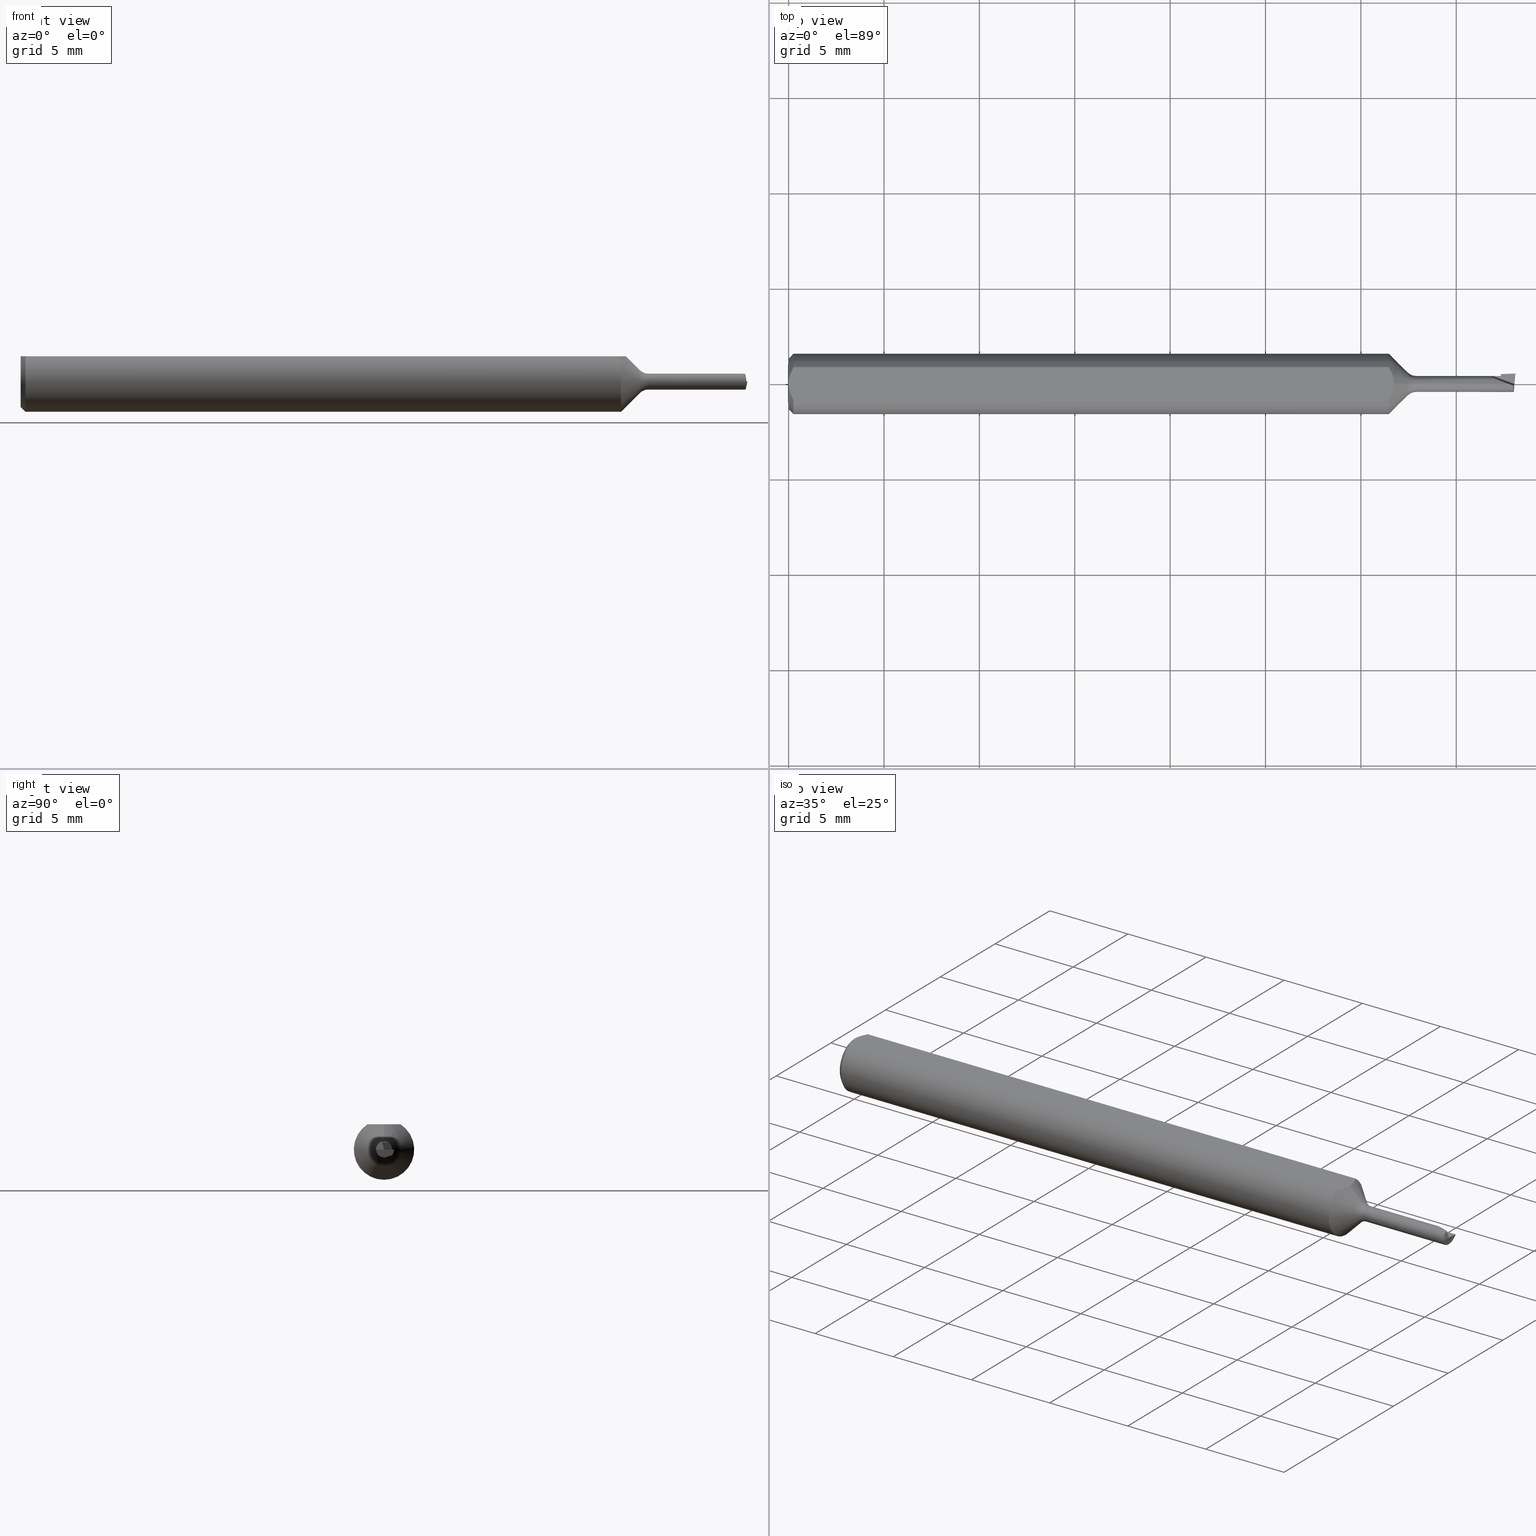
[diagram: canonical four-view strip — front | top / right | iso, engineering-drawing reading convention]
A machine part, canonical four-view strip (front | top / right | iso — engineering-drawing reading convention). The complete STEP part file that produces these views, byte-faithful:
ISO-10303-21;
HEADER;
FILE_DESCRIPTION (( 'STEP AP203' ),
    '1' );
FILE_NAME ('210037-MB040200.STEP',
    '2025-01-30T17:47:45',
    ( '' ),
    ( '' ),
    'SwSTEP 2.0',
    'SolidWorks 2024',
    '' );
FILE_SCHEMA (( 'CONFIG_CONTROL_DESIGN' ));
ENDSEC;

DATA;
#1 = CARTESIAN_POINT ( 'NONE',  ( 0.000000000000000000, 0.000000000000000000, -0.05235000000000033377 ) ) ;
#2 = ORIENTED_EDGE ( 'NONE', *, *, #190, .F. ) ;
#3 = CARTESIAN_POINT ( 'NONE',  ( 0.000000000000000000, 0.000000000000000000, 0.05235000000000033377 ) ) ;
#4 = CARTESIAN_POINT ( 'NONE',  ( 1.495529215183589722, -0.003655992920803003126, 0.01608986375837404698 ) ) ;
#5 = VERTEX_POINT ( 'NONE', #121 ) ;
#6 = DIRECTION ( 'NONE',  ( 0.000000000000000000, 0.000000000000000000, 1.000000000000000000 ) ) ;
#7 = VECTOR ( 'NONE', #28, 39.37007874015748854 ) ;
#8 = VERTEX_POINT ( 'NONE', #620 ) ;
#9 = LINE ( 'NONE', #672, #26 ) ;
#10 = ORIENTED_EDGE ( 'NONE', *, *, #668, .F. ) ;
#11 = CC_DESIGN_SECURITY_CLASSIFICATION ( #248, ( #375 ) ) ;
#12 = CARTESIAN_POINT ( 'NONE',  ( 1.249150000000000205, -0.005924191432847210857, 0.05235000000000002152 ) ) ;
#13 = ORIENTED_EDGE ( 'NONE', *, *, #608, .T. ) ;
#14 = DIMENSIONAL_EXPONENTS ( 1.000000000000000000, 0.000000000000000000, 0.000000000000000000, 0.000000000000000000, 0.000000000000000000, 0.000000000000000000, 0.000000000000000000 ) ;
#15 = DATE_TIME_ROLE ( 'creation_date' ) ;
#16 = EDGE_CURVE ( 'NONE', #511, #639, #342, .T. ) ;
#17 = DIRECTION ( 'NONE',  ( 0.000000000000000000, 0.000000000000000000, 1.000000000000000000 ) ) ;
#18 = ORIENTED_EDGE ( 'NONE', *, *, #38, .F. ) ;
#19 = PERSON_AND_ORGANIZATION ( #624, #443 ) ;
#20 = LINE ( 'NONE', #667, #418 ) ;
#21 = ORIENTED_EDGE ( 'NONE', *, *, #352, .T. ) ;
#22 = PLANE ( 'NONE',  #485 ) ;
#23 = ORIENTED_EDGE ( 'NONE', *, *, #543, .T. ) ;
#24 = VECTOR ( 'NONE', #189, 39.37007874015748854 ) ;
#25 = ADVANCED_FACE ( 'NONE', ( #350 ), #472, .F. ) ;
#26 = VECTOR ( 'NONE', #341, 39.37007874015748854 ) ;
#27 = FACE_OUTER_BOUND ( 'NONE', #223, .T. ) ;
#28 = DIRECTION ( 'NONE',  ( -0.03279713600597871509, 0.9391870936218528199, 0.3418361464853330589 ) ) ;
#29 = ADVANCED_FACE ( 'NONE', ( #287 ), #344, .F. ) ;
#30 = CARTESIAN_POINT ( 'NONE',  ( 1.559649886803125440, 0.01449728686633818507, -0.01228235234888716207 ) ) ;
#31 = CC_DESIGN_PERSON_AND_ORGANIZATION_ASSIGNMENT ( #371, #647, ( #285 ) ) ;
#32 = CARTESIAN_POINT ( 'NONE',  ( 1.445184144298829798, 0.01650000000000001465, 0.009665476220843939592 ) ) ;
#33 = DIRECTION ( 'NONE',  ( 0.7071067811865550112, 0.000000000000000000, -0.7071067811865400232 ) ) ;
#34 = PLANE ( 'NONE',  #595 ) ;
#35 = ORIENTED_EDGE ( 'NONE', *, *, #601, .F. ) ;
#36 = AXIS2_PLACEMENT_3D ( 'NONE', #297, #524, #683 ) ;
#37 = CARTESIAN_POINT ( 'NONE',  ( 1.470115918604895766, 0.01765687352215218955, -0.005999999999999993186 ) ) ;
#38 = EDGE_CURVE ( 'NONE', #147, #8, #454, .T. ) ;
#39 = FACE_OUTER_BOUND ( 'NONE', #584, .T. ) ;
#40 = VERTEX_POINT ( 'NONE', #563 ) ;
#41 = CIRCLE ( 'NONE', #381, 0.02382233047033641138 ) ;
#42 = LINE ( 'NONE', #311, #58 ) ;
#43 = CARTESIAN_POINT ( 'NONE',  ( 1.277677669529663662, 2.917394075872794992E-18, -0.02382233047033641138 ) ) ;
#44 = DIRECTION ( 'NONE',  ( 1.000000000000000000, 0.000000000000000000, 0.000000000000000000 ) ) ;
#45 = CC_DESIGN_APPROVAL ( #197, ( #375 ) ) ;
#46 = DIRECTION ( 'NONE',  ( 0.000000000000000000, 0.000000000000000000, 1.000000000000000000 ) ) ;
#47 = VECTOR ( 'NONE', #677, 39.37007874015748143 ) ;
#48 = CARTESIAN_POINT ( 'NONE',  ( 0.000000000000000000, 0.000000000000000000, 0.000000000000000000 ) ) ;
#49 = CONICAL_SURFACE ( 'NONE', #421, 0.05235000000000033377, 0.7853981633974376209 ) ;
#50 = CARTESIAN_POINT ( 'NONE',  ( 1.498118091431547949, -1.031336641992635892E-05, 2.018179798846331726E-16 ) ) ;
#51 = ORIENTED_EDGE ( 'NONE', *, *, #469, .F. ) ;
#52 = EDGE_CURVE ( 'NONE', #310, #511, #568, .T. ) ;
#53 = COORDINATED_UNIVERSAL_TIME_OFFSET ( 8, 0, .BEHIND. ) ;
#54 = DIRECTION ( 'NONE',  ( 0.000000000000000000, 0.000000000000000000, -1.000000000000000000 ) ) ;
#55 = VERTEX_POINT ( 'NONE', #399 ) ;
#56 = CARTESIAN_POINT ( 'NONE',  ( 1.496675430786014616, -0.01650000000000000078, 1.657078857424774083E-16 ) ) ;
#57 = EDGE_LOOP ( 'NONE', ( #278, #70, #175, #499, #570, #220, #690, #18 ) ) ;
#58 = VECTOR ( 'NONE', #356, 39.37007874015748854 ) ;
#59 = DIRECTION ( 'NONE',  ( 0.000000000000000000, 0.000000000000000000, 1.000000000000000000 ) ) ;
#60 = ADVANCED_FACE ( 'NONE', ( #567 ), #586, .T. ) ;
#61 = EDGE_LOOP ( 'NONE', ( #535, #301, #184, #673 ) ) ;
#62 = LINE ( 'NONE', #394, #229 ) ;
#63 = APPLICATION_CONTEXT ( 'configuration controlled 3d designs of mechanical parts and assemblies' ) ;
#64 = VERTEX_POINT ( 'NONE', #306 ) ;
#65 = PERSON_AND_ORGANIZATION_ROLE ( 'classification_officer' ) ;
#66 = DIRECTION ( 'NONE',  ( 0.000000000000000000, 0.3420201433256630508, -0.9396926207859105373 ) ) ;
#67 = DIRECTION ( 'NONE',  ( -1.000000000000000000, -0.000000000000000000, -0.000000000000000000 ) ) ;
#68 = ADVANCED_FACE ( 'NONE', ( #580 ), #650, .T. ) ;
#69 = DIRECTION ( 'NONE',  ( -0.000000000000000000, 1.000000000000000000, 1.824863490545273093E-17 ) ) ;
#70 = ORIENTED_EDGE ( 'NONE', *, *, #457, .T. ) ;
#71 = VECTOR ( 'NONE', #67, 39.37007874015748143 ) ;
#72 = DIRECTION ( 'NONE',  ( 0.000000000000000000, -1.000000000000000000, 0.000000000000000000 ) ) ;
#73 = VECTOR ( 'NONE', #520, 39.37007874015748854 ) ;
#74 = APPROVAL ( #600, 'UNSPECIFIED' ) ;
#75 = CARTESIAN_POINT ( 'NONE',  ( 0.000000000000000000, 0.03386738844375220686, 0.05235000000000000070 ) ) ;
#76 = EDGE_CURVE ( 'NONE', #393, #588, #231, .T. ) ;
#77 = EDGE_LOOP ( 'NONE', ( #390, #662, #51, #92, #168, #434 ) ) ;
#78 = DIRECTION ( 'NONE',  ( 0.000000000000000000, 0.000000000000000000, -1.000000000000000000 ) ) ;
#79 = VERTEX_POINT ( 'NONE', #140 ) ;
#80 = AXIS2_PLACEMENT_3D ( 'NONE', #391, #611, #123 ) ;
#81 = VECTOR ( 'NONE', #69, 39.37007874015748143 ) ;
#82 = CARTESIAN_POINT ( 'NONE',  ( 0.004671770759546769666, 0.02323517832780105236, 0.05235000000000002152 ) ) ;
#83 = LINE ( 'NONE', #43, #530 ) ;
#84 = ORIENTED_EDGE ( 'NONE', *, *, #88, .F. ) ;
#85 = LINE ( 'NONE', #30, #334 ) ;
#86 = DIRECTION ( 'NONE',  ( -1.000000000000000000, -0.000000000000000000, -0.000000000000000000 ) ) ;
#87 = ORIENTED_EDGE ( 'NONE', *, *, #321, .F. ) ;
#88 = EDGE_CURVE ( 'NONE', #511, #484, #247, .T. ) ;
#89 = EDGE_CURVE ( 'NONE', #539, #467, #152, .T. ) ;
#90 = CARTESIAN_POINT ( 'NONE',  ( 1.249150000000000205, -2.188252446738582210E-21, 0.05235000000000001458 ) ) ;
#91 = CARTESIAN_POINT ( 'NONE',  ( 1.485163143730661384, 0.000000000000000000, 0.01650000000000001119 ) ) ;
#92 = ORIENTED_EDGE ( 'NONE', *, *, #103, .F. ) ;
#93 = LINE ( 'NONE', #139, #515 ) ;
#94 = DIRECTION ( 'NONE',  ( 0.1396943646708783959, 0.000000000000000000, 0.9901946699913101169 ) ) ;
#95 = ORIENTED_EDGE ( 'NONE', *, *, #267, .F. ) ;
#96 = AXIS2_PLACEMENT_3D ( 'NONE', #272, #498, #6 ) ;
#97 = ADVANCED_FACE ( 'NONE', ( #191 ), #313, .T. ) ;
#98 = CARTESIAN_POINT ( 'NONE',  ( 0.000000000000000000, 0.000000000000000000, 0.000000000000000000 ) ) ;
#99 = VERTEX_POINT ( 'NONE', #199 ) ;
#100 = DIRECTION ( 'NONE',  ( 0.02467767077832642292, -0.7066760308408333024, 0.7071067811865490160 ) ) ;
#101 = DIRECTION ( 'NONE',  ( -1.000000000000000000, -0.000000000000000000, -0.000000000000000000 ) ) ;
#102 = ORIENTED_EDGE ( 'NONE', *, *, #290, .F. ) ;
#103 = EDGE_CURVE ( 'NONE', #553, #5, #357, .T. ) ;
#104 = PERSON_AND_ORGANIZATION ( #624, #443 ) ;
#105 = ORIENTED_EDGE ( 'NONE', *, *, #76, .T. ) ;
#106 = CONICAL_SURFACE ( 'NONE', #564, 0.05235000000000033377, 0.7853981633974376209 ) ;
#107 = PERSON_AND_ORGANIZATION_ROLE ( 'creator' ) ;
#108 = CARTESIAN_POINT ( 'NONE',  ( 0.000000000000000000, 0.000000000000000000, 0.000000000000000000 ) ) ;
#109 = EDGE_LOOP ( 'NONE', ( #21, #649, #546, #105, #596, #701 ) ) ;
#110 =( CONVERSION_BASED_UNIT ( 'INCH', #369 ) LENGTH_UNIT ( ) NAMED_UNIT ( #14 ) );
#111 = ADVANCED_FACE ( 'NONE', ( #367 ), #518, .T. ) ;
#112 = CARTESIAN_POINT ( 'NONE',  ( 1.495791212049516705, 2.020667218593134095E-18, -0.01650000000000001119 ) ) ;
#113 = EDGE_LOOP ( 'NONE', ( #377, #581, #118, #237, #262, #502 ) ) ;
#114 = DATE_AND_TIME ( #235, #536 ) ;
#115 = CIRCLE ( 'NONE', #355, 0.01650000000000000078 ) ;
#116 = CARTESIAN_POINT ( 'NONE',  ( 1.470018275189427071, 0.02045301509892536590, -1.647564196170101210E-18 ) ) ;
#117 = VECTOR ( 'NONE', #444, 39.37007874015748143 ) ;
#118 = ORIENTED_EDGE ( 'NONE', *, *, #691, .T. ) ;
#119 = CARTESIAN_POINT ( 'NONE',  ( 1.249150000000000205, -2.188252446738582210E-21, 0.05235000000000001458 ) ) ;
#120 = ADVANCED_FACE ( 'NONE', ( #411 ), #34, .F. ) ;
#121 = CARTESIAN_POINT ( 'NONE',  ( 1.470018275189427071, 0.02045301509892536590, -1.647564196170101210E-18 ) ) ;
#122 = PERSON_AND_ORGANIZATION ( #624, #443 ) ;
#123 = DIRECTION ( 'NONE',  ( 0.000000000000000000, 0.000000000000000000, 1.000000000000000000 ) ) ;
#124 = CARTESIAN_POINT ( 'NONE',  ( 1.295355339059327315, 0.000000000000000000, 0.000000000000000000 ) ) ;
#125 = PRODUCT_RELATED_PRODUCT_CATEGORY ( 'detail', '', ( #285 ) ) ;
#126 = CARTESIAN_POINT ( 'NONE',  ( 1.485163143730661384, 0.000000000000000000, 0.01650000000000001119 ) ) ;
#127 = ORIENTED_EDGE ( 'NONE', *, *, #201, .F. ) ;
#128 = CALENDAR_DATE ( 2025, 30, 1 ) ;
#129 = DIRECTION ( 'NONE',  ( -1.000000000000000000, -0.000000000000000000, -0.000000000000000000 ) ) ;
#130 = CARTESIAN_POINT ( 'NONE',  ( 1.485163143730661384, 0.000000000000000000, 0.01650000000000001119 ) ) ;
#131 = CARTESIAN_POINT ( 'NONE',  ( 1.248078676938162879, 0.01191467125359128854, 0.05235000000000001458 ) ) ;
#132 = ORIENTED_EDGE ( 'NONE', *, *, #52, .F. ) ;
#133 = LOCAL_TIME ( 9, 47, 45.00000000000000000, #322 ) ;
#134 = DIRECTION ( 'NONE',  ( 0.02467767077832629108, -0.7066760308408363001, -0.7071067811865460184 ) ) ;
#135 = UNCERTAINTY_MEASURE_WITH_UNIT (LENGTH_MEASURE( 1.000000000000000082E-05 ), #110, 'distance_accuracy_value', 'NONE');
#136 = CARTESIAN_POINT ( 'NONE',  ( 1.470000000000000195, 0.01699961474610954537, -0.01137157948427595412 ) ) ;
#137 = ORIENTED_EDGE ( 'NONE', *, *, #514, .F. ) ;
#138 = AXIS2_PLACEMENT_3D ( 'NONE', #656, #538, #436 ) ;
#139 = CARTESIAN_POINT ( 'NONE',  ( 7.972244684472105919E-35, 0.01650000000000001119, -1.170174725306101331E-17 ) ) ;
#140 = CARTESIAN_POINT ( 'NONE',  ( 1.239150000000000418, 0.03386738844375220686, 0.05235000000000000070 ) ) ;
#141 = EDGE_CURVE ( 'NONE', #403, #669, #83, .T. ) ;
#142 = CARTESIAN_POINT ( 'NONE',  ( 1.244488220844932602, 0.02320483992252773964, 0.05235000000000002152 ) ) ;
#143 = DIRECTION ( 'NONE',  ( 0.01474916463202824261, -0.4223608141144115646, -0.9063077870366496036 ) ) ;
#144 = ORIENTED_EDGE ( 'NONE', *, *, #277, .T. ) ;
#145 = LINE ( 'NONE', #252, #458 ) ;
#146 = DIRECTION ( 'NONE',  ( -0.9864997997699062049, 0.08630754905046410241, 0.1391731009600518376 ) ) ;
#147 = VERTEX_POINT ( 'NONE', #246 ) ;
#148 = AXIS2_PLACEMENT_3D ( 'NONE', #526, #621, #572 ) ;
#149 = APPLICATION_CONTEXT ( 'configuration controlled 3d designs of mechanical parts and assemblies' ) ;
#150 = EDGE_CURVE ( 'NONE', #403, #550, #41, .T. ) ;
#151 = APPLICATION_PROTOCOL_DEFINITION ( 'international standard', 'config_control_design', 1994, #63 ) ;
#152 = B_SPLINE_CURVE_WITH_KNOTS ( 'NONE', 3,
 ( #136, #408, #300, #362 ),
 .UNSPECIFIED., .F., .F.,
 ( 4, 4 ),
 ( 2.003483627556229032E-07, 3.726964764491891659E-06 ),
 .UNSPECIFIED. ) ;
#153 = VERTEX_POINT ( 'NONE', #686 ) ;
#154 = DIRECTION ( 'NONE',  ( -0.1593925713349157725, -0.7010550863643481012, -0.6950653020299029095 ) ) ;
#155 = ORIENTED_EDGE ( 'NONE', *, *, #480, .T. ) ;
#156 = CARTESIAN_POINT ( 'NONE',  ( 1.495529215183589722, -0.003655992920803003126, 0.01608986375837404698 ) ) ;
#157 = CC_DESIGN_APPROVAL ( #74, ( #248 ) ) ;
#158 = DIRECTION ( 'NONE',  ( -0.000000000000000000, 1.000000000000000000, 1.224646799147353207E-16 ) ) ;
#159 = ORIENTED_EDGE ( 'NONE', *, *, #141, .T. ) ;
#160 = CALENDAR_DATE ( 2025, 30, 1 ) ;
#161 = DIRECTION ( 'NONE',  ( 0.000000000000000000, 0.000000000000000000, -1.000000000000000000 ) ) ;
#162 = VERTEX_POINT ( 'NONE', #631 ) ;
#163 = AXIS2_PLACEMENT_3D ( 'NONE', #395, #508, #234 ) ;
#164 = ADVANCED_FACE ( 'NONE', ( #39 ), #689, .F. ) ;
#165 = AXIS2_PLACEMENT_3D ( 'NONE', #370, #146, #94 ) ;
#166 = CARTESIAN_POINT ( 'NONE',  ( 1.496675430786014616, -0.01650000000000000078, 1.657078857424774083E-16 ) ) ;
#167 = CARTESIAN_POINT ( 'NONE',  ( 1.496173569350492283, 0.003830031936729970735, -0.01616491562459390283 ) ) ;
#168 = ORIENTED_EDGE ( 'NONE', *, *, #423, .F. ) ;
#169 = CALENDAR_DATE ( 2025, 30, 1 ) ;
#170 = CARTESIAN_POINT ( 'NONE',  ( 1.295355339059327315, 5.082284216461516112E-18, -0.04150000000000000216 ) ) ;
#171 = ORIENTED_EDGE ( 'NONE', *, *, #400, .T. ) ;
#172 = SHAPE_DEFINITION_REPRESENTATION ( #666, #663 ) ;
#173 = CARTESIAN_POINT ( 'NONE',  ( 1.452756378269187909, 0.01649999999999999384, -2.052597612783503544E-18 ) ) ;
#174 = AXIS2_PLACEMENT_3D ( 'NONE', #555, #66, #510 ) ;
#175 = ORIENTED_EDGE ( 'NONE', *, *, #345, .F. ) ;
#176 = CARTESIAN_POINT ( 'NONE',  ( 1.470138601854636073, 0.01700731023731563707, -0.01136877855453887268 ) ) ;
#177 = EDGE_LOOP ( 'NONE', ( #471, #171, #542, #521, #665, #675 ) ) ;
#178 = APPROVAL_ROLE ( '' ) ;
#179 = DIRECTION ( 'NONE',  ( -1.000000000000000000, -0.000000000000000000, -0.000000000000000000 ) ) ;
#180 = EDGE_LOOP ( 'NONE', ( #528, #35, #353, #211 ) ) ;
#181 = PERSON_AND_ORGANIZATION ( #624, #443 ) ;
#182 = CYLINDRICAL_SURFACE ( 'NONE', #238, 0.06235000000000000264 ) ;
#183 = CARTESIAN_POINT ( 'NONE',  ( 0.000000000000000000, 0.000000000000000000, 0.000000000000000000 ) ) ;
#184 = ORIENTED_EDGE ( 'NONE', *, *, #76, .F. ) ;
#185 = CARTESIAN_POINT ( 'NONE',  ( 1.470115918604895766, 0.01765687352215218955, -0.005999999999999993186 ) ) ;
#186 = CARTESIAN_POINT ( 'NONE',  ( 1.500296196177055563, 0.02488553779562373974, 2.774533118565267485E-16 ) ) ;
#187 = ORIENTED_EDGE ( 'NONE', *, *, #358, .F. ) ;
#188 =( GEOMETRIC_REPRESENTATION_CONTEXT ( 3 ) GLOBAL_UNCERTAINTY_ASSIGNED_CONTEXT ( ( #135 ) ) GLOBAL_UNIT_ASSIGNED_CONTEXT ( ( #110, #275, #215 ) ) REPRESENTATION_CONTEXT ( 'NONE', 'WORKASPACE' ) );
#189 = DIRECTION ( 'NONE',  ( 0.9993908270190960952, 0.03489949670248750774, -0.000000000000000000 ) ) ;
#190 = EDGE_CURVE ( 'NONE', #5, #162, #532, .T. ) ;
#191 = FACE_OUTER_BOUND ( 'NONE', #612, .T. ) ;
#192 = ORIENTED_EDGE ( 'NONE', *, *, #400, .F. ) ;
#193 = DIRECTION ( 'NONE',  ( 6.641959921575765252E-18, 1.824863490545273093E-17, -1.000000000000000000 ) ) ;
#194 = DIRECTION ( 'NONE',  ( -1.000000000000000000, -0.000000000000000000, -0.000000000000000000 ) ) ;
#195 = AXIS2_PLACEMENT_3D ( 'NONE', #282, #72, #505 ) ;
#196 = EDGE_LOOP ( 'NONE', ( #386, #479, #10, #437 ) ) ;
#197 = APPROVAL ( #671, 'UNSPECIFIED' ) ;
#198 = LINE ( 'NONE', #633, #47 ) ;
#199 = CARTESIAN_POINT ( 'NONE',  ( 1.249150000000000205, -2.188252446738582210E-21, 0.05235000000000001458 ) ) ;
#200 = ORIENTED_EDGE ( 'NONE', *, *, #585, .F. ) ;
#201 = EDGE_CURVE ( 'NONE', #525, #467, #257, .T. ) ;
#202 = DIRECTION ( 'NONE',  ( 0.000000000000000000, -0.7073221891495889979, -0.7068913075831623205 ) ) ;
#203 = CARTESIAN_POINT ( 'NONE',  ( 1.470631889223364297, 0.002881408205141592314, -0.01651018642641058701 ) ) ;
#204 = EDGE_LOOP ( 'NONE', ( #599, #159, #368, #604, #329 ) ) ;
#205 = TOROIDAL_SURFACE ( 'NONE', #603, 0.04150000000000000216, 0.02499999999999998404 ) ;
#206 = EDGE_CURVE ( 'NONE', #226, #380, #679, .T. ) ;
#207 = CIRCLE ( 'NONE', #699, 0.02499999999999998404 ) ;
#208 = APPROVAL_ROLE ( '' ) ;
#209 = CARTESIAN_POINT ( 'NONE',  ( 1.496675430786014616, -0.01650000000000000078, 1.657078857424774083E-16 ) ) ;
#210 = CC_DESIGN_PERSON_AND_ORGANIZATION_ASSIGNMENT ( #181, #65, ( #248 ) ) ;
#211 = ORIENTED_EDGE ( 'NONE', *, *, #290, .T. ) ;
#212 = CARTESIAN_POINT ( 'NONE',  ( 0.01000000000000840841, -0.03386738844395137393, 0.05235000000000001458 ) ) ;
#213 = DIRECTION ( 'NONE',  ( -1.000000000000000000, -0.000000000000000000, -0.000000000000000000 ) ) ;
#214 = ORIENTED_EDGE ( 'NONE', *, *, #224, .T. ) ;
#215 =( NAMED_UNIT ( * ) SI_UNIT ( $, .STERADIAN. ) SOLID_ANGLE_UNIT ( ) );
#216 = ADVANCED_FACE ( 'NONE', ( #622 ), #106, .T. ) ;
#217 = CARTESIAN_POINT ( 'NONE',  ( 1.498061498182346352, 0.01495110719910160667, -0.009679404705626250965 ) ) ;
#218 = EDGE_LOOP ( 'NONE', ( #513, #137, #84, #132 ) ) ;
#219 = DIRECTION ( 'NONE',  ( -1.000000000000000000, -0.000000000000000000, -0.000000000000000000 ) ) ;
#220 = ORIENTED_EDGE ( 'NONE', *, *, #644, .T. ) ;
#221 = PERSON_AND_ORGANIZATION ( #624, #443 ) ;
#222 = FACE_OUTER_BOUND ( 'NONE', #57, .T. ) ;
#223 = EDGE_LOOP ( 'NONE', ( #294, #609, #200, #2 ) ) ;
#224 = EDGE_CURVE ( 'NONE', #226, #310, #331, .T. ) ;
#225 = CARTESIAN_POINT ( 'NONE',  ( 1.497492662452384771, 0.01333106971337489829, -0.01270682067925646593 ) ) ;
#226 = VERTEX_POINT ( 'NONE', #50 ) ;
#227 = PERSON_AND_ORGANIZATION ( #624, #443 ) ;
#228 = ADVANCED_FACE ( 'NONE', ( #587 ), #269, .F. ) ;
#229 = VECTOR ( 'NONE', #179, 39.37007874015748143 ) ;
#230 = EDGE_LOOP ( 'NONE', ( #214, #316, #654 ) ) ;
#231 = CIRCLE ( 'NONE', #36, 0.06235000000000000264 ) ;
#232 = DATE_AND_TIME ( #340, #466 ) ;
#233 = CARTESIAN_POINT ( 'NONE',  ( 1.405807281785768525, 0.03358807364565601083, -2.052597612783503544E-18 ) ) ;
#234 = DIRECTION ( 'NONE',  ( 0.000000000000000000, 0.000000000000000000, -1.000000000000000000 ) ) ;
#235 = CALENDAR_DATE ( 2025, 30, 1 ) ;
#236 = CARTESIAN_POINT ( 'NONE',  ( 1.470397437273016195, 0.009595233637987267070, -0.01406655381079541245 ) ) ;
#237 = ORIENTED_EDGE ( 'NONE', *, *, #338, .F. ) ;
#238 = AXIS2_PLACEMENT_3D ( 'NONE', #630, #619, #364 ) ;
#239 = DIRECTION ( 'NONE',  ( -0.9993908270190963172, -0.03489949670248555791, 0.000000000000000000 ) ) ;
#240 = CARTESIAN_POINT ( 'NONE',  ( 1.492016235874890295, -0.002455176029668951643, 0.01636271740829274221 ) ) ;
#241 = CIRCLE ( 'NONE', #336, 0.01650000000000001812 ) ;
#242 = CARTESIAN_POINT ( 'NONE',  ( 1.418326087892087362, 0.06798321074129824726, -1.341783904977988432E-18 ) ) ;
#243 = CARTESIAN_POINT ( 'NONE',  ( 1.470018275189427071, 0.02045301509892536590, -1.647564196170101210E-18 ) ) ;
#244 = EDGE_CURVE ( 'NONE', #8, #539, #648, .T. ) ;
#245 = PLANE ( 'NONE',  #571 ) ;
#246 = CARTESIAN_POINT ( 'NONE',  ( 1.496425322068737573, 0.005643332364873441392, -0.01550492824296752052 ) ) ;
#247 =( BOUNDED_CURVE ( )  B_SPLINE_CURVE ( 3, ( #91, #415, #32, #419 ),
 .UNSPECIFIED., .F., .F. ) 
 B_SPLINE_CURVE_WITH_KNOTS ( ( 4, 4 ),
 ( 4.990162771046303902, 6.560959097841201348 ),
 .UNSPECIFIED. ) 
 CURVE ( )  GEOMETRIC_REPRESENTATION_ITEM ( )  RATIONAL_B_SPLINE_CURVE ( ( 1.000000000000000000, 0.8047378541243648264, 0.8047378541243648264, 1.000000000000000000 ) ) 
 REPRESENTATION_ITEM ( '' )  );
#248 = SECURITY_CLASSIFICATION ( '', '', #554 ) ;
#249 = CARTESIAN_POINT ( 'NONE',  ( 1.239150000000000418, 7.635672792683746671E-18, -0.06235000000000000264 ) ) ;
#250 = DIRECTION ( 'NONE',  ( -1.000000000000000000, -0.000000000000000000, -0.000000000000000000 ) ) ;
#251 = ORIENTED_EDGE ( 'NONE', *, *, #392, .F. ) ;
#252 = CARTESIAN_POINT ( 'NONE',  ( 0.000000000000000000, 0.000000000000000000, -0.05235000000000033377 ) ) ;
#253 = CARTESIAN_POINT ( 'NONE',  ( 1.491155917282976473, 0.03218992960932576253, 0.06931876481191019679 ) ) ;
#254 = AXIS2_PLACEMENT_3D ( 'NONE', #379, #433, #161 ) ;
#255 = VERTEX_POINT ( 'NONE', #641 ) ;
#256 = DIRECTION ( 'NONE',  ( 1.000000000000000000, 0.000000000000000000, 0.000000000000000000 ) ) ;
#257 = LINE ( 'NONE', #203, #7 ) ;
#258 = ORIENTED_EDGE ( 'NONE', *, *, #543, .F. ) ;
#259 = AXIS2_PLACEMENT_3D ( 'NONE', #268, #100, #202 ) ;
#260 = CARTESIAN_POINT ( 'NONE',  ( -1.070637973615595603E-15, -0.005965286321711177862, 0.05235000000000002152 ) ) ;
#261 = DIRECTION ( 'NONE',  ( -0.1550261498412135730, -0.2183092626835818617, 0.9634873941531152397 ) ) ;
#262 = ORIENTED_EDGE ( 'NONE', *, *, #428, .F. ) ;
#263 = CIRCLE ( 'NONE', #661, 0.06235000000000000264 ) ;
#264 = AXIS2_PLACEMENT_3D ( 'NONE', #108, #101, #652 ) ;
#265 = DIRECTION ( 'NONE',  ( 1.000000000000000000, 0.000000000000000000, 0.000000000000000000 ) ) ;
#266 = VERTEX_POINT ( 'NONE', #1 ) ;
#267 = EDGE_CURVE ( 'NONE', #64, #255, #491, .T. ) ;
#268 = CARTESIAN_POINT ( 'NONE',  ( 1.470115918604895766, 0.01765687352215218955, -0.005999999999999993186 ) ) ;
#269 = PLANE ( 'NONE',  #509 ) ;
#270 = ORIENTED_EDGE ( 'NONE', *, *, #89, .T. ) ;
#271 =( LENGTH_UNIT ( ) NAMED_UNIT ( * ) SI_UNIT ( $, .METRE. ) );
#272 = CARTESIAN_POINT ( 'NONE',  ( 1.470000000000000195, 0.000000000000000000, 0.000000000000000000 ) ) ;
#273 = ORIENTED_EDGE ( 'NONE', *, *, #244, .T. ) ;
#274 = PRODUCT_DEFINITION ( 'UNKNOWN', '', #375, #537 ) ;
#275 =( NAMED_UNIT ( * ) PLANE_ANGLE_UNIT ( ) SI_UNIT ( $, .RADIAN. ) );
#276 = CARTESIAN_POINT ( 'NONE',  ( 1.495311847845375519, -0.01650000000000008057, -0.009665476220843871938 ) ) ;
#277 = EDGE_CURVE ( 'NONE', #266, #40, #401, .T. ) ;
#278 = ORIENTED_EDGE ( 'NONE', *, *, #392, .T. ) ;
#279 = CARTESIAN_POINT ( 'NONE',  ( 1.248078678928530971, -0.01191689336434305184, 0.05235000000000002152 ) ) ;
#280 = ORIENTED_EDGE ( 'NONE', *, *, #372, .F. ) ;
#281 = APPROVAL_DATE_TIME ( #232, #197 ) ;
#282 = CARTESIAN_POINT ( 'NONE',  ( 1.295355339059327315, 0.000000000000000000, 0.04150000000000000216 ) ) ;
#283 = AXIS2_PLACEMENT_3D ( 'NONE', #48, #533, #44 ) ;
#284 = DIRECTION ( 'NONE',  ( 0.000000000000000000, 0.000000000000000000, 1.000000000000000000 ) ) ;
#285 = PRODUCT ( '210037-MB040200', '210037-MB040200', '', ( #432 ) ) ;
#286 = CARTESIAN_POINT ( 'NONE',  ( 1.470059567516833310, 0.01927055755266903619, -0.007978070419945325342 ) ) ;
#287 = FACE_OUTER_BOUND ( 'NONE', #180, .T. ) ;
#288 = CLOSED_SHELL ( 'NONE', ( #448, #503, #25, #302, #120, #60, #68, #29, #670, #97, #531, #228, #216, #552, #486, #575, #680, #439, #164, #111, #565 ) ) ;
#289 = AXIS2_PLACEMENT_3D ( 'NONE', #309, #194, #365 ) ;
#290 = EDGE_CURVE ( 'NONE', #553, #539, #687, .T. ) ;
#291 = CARTESIAN_POINT ( 'NONE',  ( 1.469626060195310613, 0.03168458301180721026, 6.402768735150616918E-18 ) ) ;
#292 = CARTESIAN_POINT ( 'NONE',  ( 1.495529215183589722, -0.003655992920803003126, 0.01608986375837404698 ) ) ;
#293 = FACE_OUTER_BOUND ( 'NONE', #476, .T. ) ;
#294 = ORIENTED_EDGE ( 'NONE', *, *, #469, .T. ) ;
#295 = CIRCLE ( 'NONE', #387, 0.05235000000000033377 ) ;
#296 = PLANE ( 'NONE',  #482 ) ;
#297 = CARTESIAN_POINT ( 'NONE',  ( 0.009999999999999887451, 0.000000000000000000, 0.000000000000000000 ) ) ;
#298 = AXIS2_PLACEMENT_3D ( 'NONE', #483, #548, #327 ) ;
#299 = CARTESIAN_POINT ( 'NONE',  ( 1.277677669529663662, 0.000000000000000000, 0.02382233047033639403 ) ) ;
#300 = CARTESIAN_POINT ( 'NONE',  ( 1.470092401201015697, 0.01700474563677122769, -0.01136971199279982261 ) ) ;
#301 = ORIENTED_EDGE ( 'NONE', *, *, #557, .T. ) ;
#302 = ADVANCED_FACE ( 'NONE', ( #222 ), #594, .T. ) ;
#303 =( BOUNDED_CURVE ( )  B_SPLINE_CURVE ( 3, ( #116, #501, #286, #176 ),
 .UNSPECIFIED., .F., .F. ) 
 B_SPLINE_CURVE_WITH_KNOTS ( ( 4, 4 ),
 ( 3.141592653589793116, 3.730161339530075448 ),
 .UNSPECIFIED. ) 
 CURVE ( )  GEOMETRIC_REPRESENTATION_ITEM ( )  RATIONAL_B_SPLINE_CURVE ( ( 1.000000000000000000, 0.9713399782003915295, 0.9713399782003915295, 1.000000000000000000 ) ) 
 REPRESENTATION_ITEM ( '' )  );
#304 = CARTESIAN_POINT ( 'NONE',  ( -1.099542139246802830E-15, 0.005954997531773979953, 0.05235000000000002152 ) ) ;
#305 = CC_DESIGN_PERSON_AND_ORGANIZATION_ASSIGNMENT ( #227, #384, ( #375 ) ) ;
#306 = CARTESIAN_POINT ( 'NONE',  ( 1.498905260308435627, 0.01866221948760026644, -0.005999999999999993186 ) ) ;
#307 = VERTEX_POINT ( 'NONE', #494 ) ;
#308 = FACE_OUTER_BOUND ( 'NONE', #113, .T. ) ;
#309 = CARTESIAN_POINT ( 'NONE',  ( 1.277677669529663662, 0.000000000000000000, 0.000000000000000000 ) ) ;
#310 = VERTEX_POINT ( 'NONE', #4 ) ;
#311 = CARTESIAN_POINT ( 'NONE',  ( 1.499134075467371652, 0.01925535336588557120, -0.004745920181577967766 ) ) ;
#312 = DIRECTION ( 'NONE',  ( 0.9396926207859126468, -0.3420201433256568335, 0.000000000000000000 ) ) ;
#313 = CONICAL_SURFACE ( 'NONE', #289, 0.02382233047033641138, 0.7853981633974518317 ) ;
#314 = ORIENTED_EDGE ( 'NONE', *, *, #636, .F. ) ;
#315 = CARTESIAN_POINT ( 'NONE',  ( 1.495960036649731872, 0.001929674010451333955, -0.01650000000000000772 ) ) ;
#316 = ORIENTED_EDGE ( 'NONE', *, *, #702, .T. ) ;
#317 = APPROVAL_PERSON_ORGANIZATION ( #122, #74, #178 ) ;
#318 = CARTESIAN_POINT ( 'NONE',  ( 1.500000000000000222, 0.02149999999999999481, -1.067128122525102820E-18 ) ) ;
#319 = CARTESIAN_POINT ( 'NONE',  ( 1.496425322068737573, 0.005643332364873441392, -0.01550492824296752052 ) ) ;
#320 = ORIENTED_EDGE ( 'NONE', *, *, #141, .F. ) ;
#321 = EDGE_CURVE ( 'NONE', #669, #307, #540, .T. ) ;
#322 = COORDINATED_UNIVERSAL_TIME_OFFSET ( 8, 0, .BEHIND. ) ;
#323 = AXIS2_PLACEMENT_3D ( 'NONE', #574, #627, #638 ) ;
#324 = DIRECTION ( 'NONE',  ( 1.000000000000000000, 0.000000000000000000, 0.000000000000000000 ) ) ;
#325 = ORIENTED_EDGE ( 'NONE', *, *, #413, .T. ) ;
#326 = DIRECTION ( 'NONE',  ( -1.000000000000000000, -0.000000000000000000, -0.000000000000000000 ) ) ;
#327 = DIRECTION ( 'NONE',  ( 0.000000000000000000, 0.000000000000000000, 1.000000000000000000 ) ) ;
#328 = CC_DESIGN_PERSON_AND_ORGANIZATION_ASSIGNMENT ( #593, #107, ( #274 ) ) ;
#329 = ORIENTED_EDGE ( 'NONE', *, *, #608, .F. ) ;
#330 = CARTESIAN_POINT ( 'NONE',  ( 1.295355339059327315, 0.000000000000000000, 0.000000000000000000 ) ) ;
#331 = LINE ( 'NONE', #429, #348 ) ;
#332 = EDGE_LOOP ( 'NONE', ( #492, #144 ) ) ;
#333 =( BOUNDED_CURVE ( )  B_SPLINE_CURVE ( 3, ( #319, #167, #315, #534 ),
 .UNSPECIFIED., .F., .F. ) 
 B_SPLINE_CURVE_WITH_KNOTS ( ( 4, 4 ),
 ( 5.379018757165730413, 5.728084607564590591 ),
 .UNSPECIFIED. ) 
 CURVE ( )  GEOMETRIC_REPRESENTATION_ITEM ( )  RATIONAL_B_SPLINE_CURVE ( ( 1.000000000000000000, 0.9898718353414723836, 0.9898718353414723836, 1.000000000000000000 ) ) 
 REPRESENTATION_ITEM ( '' )  );
#334 = VECTOR ( 'NONE', #477, 39.37007874015748854 ) ;
#335 = DATE_TIME_ROLE ( 'classification_date' ) ;
#336 = AXIS2_PLACEMENT_3D ( 'NONE', #616, #129, #17 ) ;
#337 = CARTESIAN_POINT ( 'NONE',  ( 1.242000635225909866, -0.02861935738783995958, 0.05235000000000002152 ) ) ;
#338 = EDGE_CURVE ( 'NONE', #307, #393, #645, .T. ) ;
#339 = ORIENTED_EDGE ( 'NONE', *, *, #495, .T. ) ;
#340 = CALENDAR_DATE ( 2025, 30, 1 ) ;
#341 = DIRECTION ( 'NONE',  ( 0.9993908270190960952, 0.03489949670248750774, -0.000000000000000000 ) ) ;
#342 = LINE ( 'NONE', #556, #71 ) ;
#343 = CARTESIAN_POINT ( 'NONE',  ( 1.470000000000000195, 0.01650000000000000078, -1.938066168344637561E-18 ) ) ;
#344 = PLANE ( 'NONE',  #163 ) ;
#345 = EDGE_CURVE ( 'NONE', #639, #55, #605, .T. ) ;
#346 = DIRECTION ( 'NONE',  ( -0.08715574274766101082, -0.9961946980917453232, -1.875807829048910159E-17 ) ) ;
#347 = CARTESIAN_POINT ( 'NONE',  ( 1.560200597524541877, 0.005643332364873441392, -0.01550492824296752052 ) ) ;
#348 = VECTOR ( 'NONE', #261, 39.37007874015748854 ) ;
#349 = LINE ( 'NONE', #343, #81 ) ;
#350 = FACE_OUTER_BOUND ( 'NONE', #451, .T. ) ;
#351 = FACE_OUTER_BOUND ( 'NONE', #77, .T. ) ;
#352 = EDGE_CURVE ( 'NONE', #79, #669, #447, .T. ) ;
#353 = ORIENTED_EDGE ( 'NONE', *, *, #423, .T. ) ;
#354 = APPROVAL_PERSON_ORGANIZATION ( #19, #197, #446 ) ;
#355 = AXIS2_PLACEMENT_3D ( 'NONE', #473, #519, #407 ) ;
#356 = DIRECTION ( 'NONE',  ( -0.1627401076574671313, -0.4218543546513214282, -0.8919386530593642615 ) ) ;
#357 = LINE ( 'NONE', #478, #73 ) ;
#358 = EDGE_CURVE ( 'NONE', #403, #55, #207, .T. ) ;
#359 = AXIS2_PLACEMENT_3D ( 'NONE', #376, #424, #59 ) ;
#360 = B_SPLINE_CURVE_WITH_KNOTS ( 'NONE', 3,
 ( #361, #694, #82, #576, #304, #529 ),
 .UNSPECIFIED., .F., .F.,
 ( 4, 2, 4 ),
 ( 0.0009229516234078821539, 0.001371626545108044996, 0.001820301466808207621 ),
 .UNSPECIFIED. ) ;
#361 = CARTESIAN_POINT ( 'NONE',  ( 0.009999999999999890921, 0.03386738844375217911, 0.05235000000000001458 ) ) ;
#362 = CARTESIAN_POINT ( 'NONE',  ( 1.470138601854636073, 0.01700731023731563707, -0.01136877855453887268 ) ) ;
#363 = ORIENTED_EDGE ( 'NONE', *, *, #267, .T. ) ;
#364 = DIRECTION ( 'NONE',  ( 0.000000000000000000, 0.000000000000000000, 1.000000000000000000 ) ) ;
#365 = DIRECTION ( 'NONE',  ( 0.000000000000000000, 0.000000000000000000, 1.000000000000000000 ) ) ;
#366 = CARTESIAN_POINT ( 'NONE',  ( 1.500000000000000222, 0.06235000000000000264, 0.05235000000000001458 ) ) ;
#367 = FACE_OUTER_BOUND ( 'NONE', #230, .T. ) ;
#368 = ORIENTED_EDGE ( 'NONE', *, *, #352, .F. ) ;
#369 = LENGTH_MEASURE_WITH_UNIT ( LENGTH_MEASURE( 0.02539999999999999897 ), #271 );
#370 = CARTESIAN_POINT ( 'NONE',  ( 1.495443673491787084, 0.02531007852008724038, -0.03465938240595500125 ) ) ;
#371 = PERSON_AND_ORGANIZATION ( #624, #443 ) ;
#372 = EDGE_CURVE ( 'NONE', #550, #403, #637, .T. ) ;
#373 = CARTESIAN_POINT ( 'NONE',  ( 1.470000000000000195, 0.02021319902060507434, -0.01020193046305364892 ) ) ;
#374 = ORIENTED_EDGE ( 'NONE', *, *, #655, .F. ) ;
#375 = PRODUCT_DEFINITION_FORMATION_WITH_SPECIFIED_SOURCE ( 'ANY', '', #285, .NOT_KNOWN. ) ;
#376 = CARTESIAN_POINT ( 'NONE',  ( 1.277677669529663662, 0.000000000000000000, 0.000000000000000000 ) ) ;
#377 = ORIENTED_EDGE ( 'NONE', *, *, #412, .F. ) ;
#378 = APPROVAL_DATE_TIME ( #541, #431 ) ;
#379 = CARTESIAN_POINT ( 'NONE',  ( 0.000000000000000000, 0.000000000000000000, 0.000000000000000000 ) ) ;
#380 = VERTEX_POINT ( 'NONE', #209 ) ;
#381 = AXIS2_PLACEMENT_3D ( 'NONE', #475, #86, #695 ) ;
#382 = CARTESIAN_POINT ( 'NONE',  ( 1.277677669529663662, 2.917394075872792296E-18, -0.02382233047033639403 ) ) ;
#383 = ORIENTED_EDGE ( 'NONE', *, *, #636, .T. ) ;
#384 = PERSON_AND_ORGANIZATION_ROLE ( 'creator' ) ;
#385 = CARTESIAN_POINT ( 'NONE',  ( 0.000000000000000000, 0.000000000000000000, 0.000000000000000000 ) ) ;
#386 = ORIENTED_EDGE ( 'NONE', *, *, #557, .F. ) ;
#387 = AXIS2_PLACEMENT_3D ( 'NONE', #547, #703, #487 ) ;
#388 = VECTOR ( 'NONE', #660, 39.37007874015748143 ) ;
#389 = CARTESIAN_POINT ( 'NONE',  ( 1.470000000000000195, 0.01650000000000001119, -1.170174725306101331E-17 ) ) ;
#390 = ORIENTED_EDGE ( 'NONE', *, *, #514, .T. ) ;
#391 = CARTESIAN_POINT ( 'NONE',  ( 1.277677669529663662, 0.000000000000000000, 0.000000000000000000 ) ) ;
#392 = EDGE_CURVE ( 'NONE', #147, #430, #333, .T. ) ;
#393 = VERTEX_POINT ( 'NONE', #590 ) ;
#394 = CARTESIAN_POINT ( 'NONE',  ( 0.000000000000000000, 2.020667218593134095E-18, -0.01650000000000001119 ) ) ;
#395 = CARTESIAN_POINT ( 'NONE',  ( 1.470000000000000195, 0.01650000000000000078, 0.000000000000000000 ) ) ;
#396 = PERSON_AND_ORGANIZATION_ROLE ( 'design_supplier' ) ;
#397 = CC_DESIGN_DATE_AND_TIME_ASSIGNMENT ( #442, #15, ( #274 ) ) ;
#398 = CARTESIAN_POINT ( 'NONE',  ( 1.495791212049516705, 2.020667218593134095E-18, -0.01650000000000001119 ) ) ;
#399 = CARTESIAN_POINT ( 'NONE',  ( 1.295355339059327315, 2.020667218593135251E-18, -0.01650000000000001812 ) ) ;
#400 = EDGE_CURVE ( 'NONE', #430, #380, #640, .T. ) ;
#401 = CIRCLE ( 'NONE', #254, 0.05235000000000033377 ) ;
#402 = CARTESIAN_POINT ( 'NONE',  ( 1.470000000000000195, 0.02045237691524754570, -1.865940685009545610E-18 ) ) ;
#403 = VERTEX_POINT ( 'NONE', #382 ) ;
#404 = DIRECTION ( 'NONE',  ( 1.000000000000000000, 0.000000000000000000, 0.000000000000000000 ) ) ;
#405 = DIRECTION ( 'NONE',  ( -0.08715574274766191287, -0.9961946980917451011, -2.689833380456643130E-15 ) ) ;
#406 = VERTEX_POINT ( 'NONE', #389 ) ;
#407 = DIRECTION ( 'NONE',  ( 0.000000000000000000, 0.000000000000000000, 1.000000000000000000 ) ) ;
#408 = CARTESIAN_POINT ( 'NONE',  ( 1.470046200582772133, 0.01700218047341610361, -0.01137064563590711730 ) ) ;
#409 = ORIENTED_EDGE ( 'NONE', *, *, #428, .T. ) ;
#410 = CARTESIAN_POINT ( 'NONE',  ( 1.470000000000000195, 0.01699961474610954537, -0.01137157948427595412 ) ) ;
#411 = FACE_OUTER_BOUND ( 'NONE', #218, .T. ) ;
#412 = EDGE_CURVE ( 'NONE', #153, #79, #512, .T. ) ;
#413 = EDGE_CURVE ( 'NONE', #55, #639, #241, .T. ) ;
#414 = CARTESIAN_POINT ( 'NONE',  ( 1.241993063989529800, 0.02863329606483933434, 0.05235000000000002152 ) ) ;
#415 = CARTESIAN_POINT ( 'NONE',  ( 1.458607466065616087, 0.009665476220843929184, 0.01650000000000002159 ) ) ;
#416 = ORIENTED_EDGE ( 'NONE', *, *, #103, .T. ) ;
#417 = CARTESIAN_POINT ( 'NONE',  ( 1.495542229423954428, -0.01649999999999991404, 0.008032463953595891590 ) ) ;
#418 = VECTOR ( 'NONE', #346, 39.37007874015748143 ) ;
#419 = CARTESIAN_POINT ( 'NONE',  ( 1.452756378269187909, 0.01649999999999999384, -2.052597612783503544E-18 ) ) ;
#420 = EDGE_LOOP ( 'NONE', ( #456, #363, #23, #314 ) ) ;
#421 = AXIS2_PLACEMENT_3D ( 'NONE', #183, #602, #551 ) ;
#422 = B_SPLINE_CURVE_WITH_KNOTS ( 'NONE', 3,
 ( #3, #260, #497, #490, #643, #212 ),
 .UNSPECIFIED., .F., .F.,
 ( 4, 2, 4 ),
 ( 0.001820301466808207621, 0.002269751589840481119, 0.002719201712872754834 ),
 .UNSPECIFIED. ) ;
#423 = EDGE_CURVE ( 'NONE', #406, #553, #349, .T. ) ;
#424 = DIRECTION ( 'NONE',  ( -1.000000000000000000, -0.000000000000000000, -0.000000000000000000 ) ) ;
#425 = B_SPLINE_CURVE_WITH_KNOTS ( 'NONE', 3,
 ( #119, #12, #279, #561, #337, #566 ),
 .UNSPECIFIED., .F., .F.,
 ( 4, 2, 4 ),
 ( 0.002951453973688291169, 0.003400644490106667032, 0.003849835006525042895 ),
 .UNSPECIFIED. ) ;
#426 = ORIENTED_EDGE ( 'NONE', *, *, #345, .T. ) ;
#427 = DIRECTION ( 'NONE',  ( 0.000000000000000000, 0.000000000000000000, 1.000000000000000000 ) ) ;
#428 = EDGE_CURVE ( 'NONE', #99, #307, #425, .T. ) ;
#429 = CARTESIAN_POINT ( 'NONE',  ( 1.497036667718402159, -0.001533184273729277678, 0.006721047490512752770 ) ) ;
#430 = VERTEX_POINT ( 'NONE', #398 ) ;
#431 = APPROVAL ( #698, 'UNSPECIFIED' ) ;
#432 = MECHANICAL_CONTEXT ( 'NONE', #63, 'mechanical' ) ;
#433 = DIRECTION ( 'NONE',  ( -1.000000000000000000, -0.000000000000000000, -0.000000000000000000 ) ) ;
#434 = ORIENTED_EDGE ( 'NONE', *, *, #644, .F. ) ;
#435 = PLANE ( 'NONE',  #259 ) ;
#436 = DIRECTION ( 'NONE',  ( 0.000000000000000000, 0.000000000000000000, 1.000000000000000000 ) ) ;
#437 = ORIENTED_EDGE ( 'NONE', *, *, #592, .F. ) ;
#438 = VECTOR ( 'NONE', #405, 39.37007874015748854 ) ;
#439 = ADVANCED_FACE ( 'NONE', ( #293 ), #22, .F. ) ;
#440 = CARTESIAN_POINT ( 'NONE',  ( 1.239150000000000418, 0.000000000000000000, 0.000000000000000000 ) ) ;
#441 = ORIENTED_EDGE ( 'NONE', *, *, #190, .T. ) ;
#442 = DATE_AND_TIME ( #169, #658 ) ;
#443 = ORGANIZATION ( 'UNSPECIFIED', 'UNSPECIFIED', '' ) ;
#444 = DIRECTION ( 'NONE',  ( 0.1293675338645381423, 0.9317961139776900215, 0.3391460498927904577 ) ) ;
#445 = ORIENTED_EDGE ( 'NONE', *, *, #150, .F. ) ;
#446 = APPROVAL_ROLE ( '' ) ;
#447 = CIRCLE ( 'NONE', #298, 0.06235000000000000264 ) ;
#448 = ADVANCED_FACE ( 'NONE', ( #674 ), #49, .T. ) ;
#449 = FACE_OUTER_BOUND ( 'NONE', #204, .T. ) ;
#450 = VECTOR ( 'NONE', #614, 39.37007874015748143 ) ;
#451 = EDGE_LOOP ( 'NONE', ( #445, #684, #325, #696 ) ) ;
#452 = COORDINATED_UNIVERSAL_TIME_OFFSET ( 8, 0, .BEHIND. ) ;
#453 = DIRECTION ( 'NONE',  ( 0.9396926207859126468, -0.3420201433256568335, -0.000000000000000000 ) ) ;
#454 = LINE ( 'NONE', #347, #450 ) ;
#455 = FACE_OUTER_BOUND ( 'NONE', #109, .T. ) ;
#456 = ORIENTED_EDGE ( 'NONE', *, *, #585, .T. ) ;
#457 = EDGE_CURVE ( 'NONE', #430, #55, #62, .T. ) ;
#458 = VECTOR ( 'NONE', #33, 39.37007874015748143 ) ;
#459 = DIRECTION ( 'NONE',  ( 0.03489949670248555791, -0.9993908270190963172, 0.000000000000000000 ) ) ;
#460 = ORIENTED_EDGE ( 'NONE', *, *, #206, .T. ) ;
#461 = EDGE_CURVE ( 'NONE', #5, #467, #303, .T. ) ;
#462 = CARTESIAN_POINT ( 'NONE',  ( 0.009999999999999887451, 0.000000000000000000, 0.000000000000000000 ) ) ;
#463 = DIRECTION ( 'NONE',  ( -0.3303660895493408800, -0.9076733711903733903, -0.2588190451025187966 ) ) ;
#464 = LINE ( 'NONE', #185, #697 ) ;
#465 = CARTESIAN_POINT ( 'NONE',  ( 0.000000000000000000, 0.000000000000000000, 0.000000000000000000 ) ) ;
#466 = LOCAL_TIME ( 9, 47, 45.00000000000000000, #452 ) ;
#467 = VERTEX_POINT ( 'NONE', #664 ) ;
#468 = LINE ( 'NONE', #37, #24 ) ;
#469 = EDGE_CURVE ( 'NONE', #5, #705, #9, .T. ) ;
#470 = DIRECTION ( 'NONE',  ( 0.9864997997699040955, -0.08630754905046565673, 0.1391731009600657154 ) ) ;
#471 = ORIENTED_EDGE ( 'NONE', *, *, #457, .F. ) ;
#472 = TOROIDAL_SURFACE ( 'NONE', #628, 0.04150000000000000216, 0.02499999999999998404 ) ;
#473 = CARTESIAN_POINT ( 'NONE',  ( 1.470000000000000195, 0.000000000000000000, 0.000000000000000000 ) ) ;
#474 = AXIS2_PLACEMENT_3D ( 'NONE', #253, #470, #634 ) ;
#475 = CARTESIAN_POINT ( 'NONE',  ( 1.277677669529663662, 0.000000000000000000, 0.000000000000000000 ) ) ;
#476 = EDGE_LOOP ( 'NONE', ( #441, #383, #657, #646 ) ) ;
#477 = DIRECTION ( 'NONE',  ( -0.9982962607160562607, -0.05482988347611535834, -0.01995644553358990464 ) ) ;
#478 = CARTESIAN_POINT ( 'NONE',  ( 0.8843205544173288191, 1.118500449136331903E-34, -6.129228048735424499E-18 ) ) ;
#479 = ORIENTED_EDGE ( 'NONE', *, *, #676, .F. ) ;
#480 = EDGE_CURVE ( 'NONE', #147, #255, #613, .T. ) ;
#481 = APPLICATION_PROTOCOL_DEFINITION ( 'international standard', 'config_control_design', 1994, #149 ) ;
#482 = AXIS2_PLACEMENT_3D ( 'NONE', #242, #193, #688 ) ;
#483 = CARTESIAN_POINT ( 'NONE',  ( 1.239150000000000418, 0.000000000000000000, 0.000000000000000000 ) ) ;
#484 = VERTEX_POINT ( 'NONE', #173 ) ;
#485 = AXIS2_PLACEMENT_3D ( 'NONE', #291, #239, #459 ) ;
#486 = ADVANCED_FACE ( 'NONE', ( #607 ), #507, .T. ) ;
#487 = DIRECTION ( 'NONE',  ( 0.000000000000000000, 0.000000000000000000, -1.000000000000000000 ) ) ;
#488 = DIRECTION ( 'NONE',  ( 0.000000000000000000, 0.000000000000000000, -1.000000000000000000 ) ) ;
#489 = EDGE_LOOP ( 'NONE', ( #187, #280, #339, #426 ) ) ;
#490 = CARTESIAN_POINT ( 'NONE',  ( 0.004679365186825695105, -0.02325953974091124477, 0.05235000000000000764 ) ) ;
#491 = LINE ( 'NONE', #217, #653 ) ;
#492 = ORIENTED_EDGE ( 'NONE', *, *, #676, .T. ) ;
#493 = FACE_OUTER_BOUND ( 'NONE', #420, .T. ) ;
#494 = CARTESIAN_POINT ( 'NONE',  ( 1.239150000000000418, -0.03386738844375220686, 0.05235000000000000070 ) ) ;
#495 = EDGE_CURVE ( 'NONE', #550, #639, #573, .T. ) ;
#496 = ORIENTED_EDGE ( 'NONE', *, *, #150, .T. ) ;
#497 = CARTESIAN_POINT ( 'NONE',  ( 0.001055043921644571291, -0.01186408073217194367, 0.05235000000000002152 ) ) ;
#498 = DIRECTION ( 'NONE',  ( -1.000000000000000000, -0.000000000000000000, -0.000000000000000000 ) ) ;
#499 = ORIENTED_EDGE ( 'NONE', *, *, #16, .F. ) ;
#500 = VECTOR ( 'NONE', #143, 39.37007874015747433 ) ;
#501 = CARTESIAN_POINT ( 'NONE',  ( 1.470018275189427071, 0.02045301509892494263, -0.004076663151056874809 ) ) ;
#502 = ORIENTED_EDGE ( 'NONE', *, *, #544, .F. ) ;
#503 = ADVANCED_FACE ( 'NONE', ( #449 ), #635, .T. ) ;
#504 = COORDINATED_UNIVERSAL_TIME_OFFSET ( 8, 0, .BEHIND. ) ;
#505 = DIRECTION ( 'NONE',  ( 0.000000000000000000, 0.000000000000000000, -1.000000000000000000 ) ) ;
#506 = ORIENTED_EDGE ( 'NONE', *, *, #38, .T. ) ;
#507 = PLANE ( 'NONE',  #174 ) ;
#508 = DIRECTION ( 'NONE',  ( 1.000000000000000000, 0.000000000000000000, 0.000000000000000000 ) ) ;
#509 = AXIS2_PLACEMENT_3D ( 'NONE', #385, #265, #54 ) ;
#510 = DIRECTION ( 'NONE',  ( 0.000000000000000000, 0.9396926207859103153, 0.3420201433256629953 ) ) ;
#511 = VERTEX_POINT ( 'NONE', #126 ) ;
#512 = LINE ( 'NONE', #75, #388 ) ;
#513 = ORIENTED_EDGE ( 'NONE', *, *, #224, .F. ) ;
#514 = EDGE_CURVE ( 'NONE', #484, #226, #559, .T. ) ;
#515 = VECTOR ( 'NONE', #256, 39.37007874015748143 ) ;
#516 = DIRECTION ( 'NONE',  ( -1.000000000000000000, 0.000000000000000000, -0.000000000000000000 ) ) ;
#517 = AXIS2_PLACEMENT_3D ( 'NONE', #440, #213, #46 ) ;
#518 = PLANE ( 'NONE',  #474 ) ;
#519 = DIRECTION ( 'NONE',  ( -1.000000000000000000, -0.000000000000000000, -0.000000000000000000 ) ) ;
#520 = DIRECTION ( 'NONE',  ( 0.9993908270190957621, 0.03489949670250178104, 7.274781992759298740E-18 ) ) ;
#521 = ORIENTED_EDGE ( 'NONE', *, *, #52, .T. ) ;
#522 = EDGE_CURVE ( 'NONE', #705, #226, #20, .T. ) ;
#523 = DIRECTION ( 'NONE',  ( 0.000000000000000000, 0.000000000000000000, -1.000000000000000000 ) ) ;
#524 = DIRECTION ( 'NONE',  ( 1.000000000000000000, 0.000000000000000000, 0.000000000000000000 ) ) ;
#525 = VERTEX_POINT ( 'NONE', #236 ) ;
#526 = CARTESIAN_POINT ( 'NONE',  ( 1.470018275189427071, 0.02045301509892536590, -1.647564196170101210E-18 ) ) ;
#527 = DIRECTION ( 'NONE',  ( 0.000000000000000000, 0.000000000000000000, 1.000000000000000000 ) ) ;
#528 = ORIENTED_EDGE ( 'NONE', *, *, #244, .F. ) ;
#529 = CARTESIAN_POINT ( 'NONE',  ( 0.000000000000000000, 0.000000000000000000, 0.05235000000000033377 ) ) ;
#530 = VECTOR ( 'NONE', #583, 39.37007874015748143 ) ;
#531 = ADVANCED_FACE ( 'NONE', ( #455 ), #182, .T. ) ;
#532 = LINE ( 'NONE', #243, #500 ) ;
#533 = DIRECTION ( 'NONE',  ( 0.000000000000000000, 0.000000000000000000, 1.000000000000000000 ) ) ;
#534 = CARTESIAN_POINT ( 'NONE',  ( 1.495791212049516705, 2.020667218593134095E-18, -0.01650000000000001119 ) ) ;
#535 = ORIENTED_EDGE ( 'NONE', *, *, #277, .F. ) ;
#536 = LOCAL_TIME ( 9, 47, 45.00000000000000000, #504 ) ;
#537 = DESIGN_CONTEXT ( 'detailed design', #149, 'design' ) ;
#538 = DIRECTION ( 'NONE',  ( -1.000000000000000000, -0.000000000000000000, -0.000000000000000000 ) ) ;
#539 = VERTEX_POINT ( 'NONE', #410 ) ;
#540 = CIRCLE ( 'NONE', #517, 0.06235000000000000264 ) ;
#541 = DATE_AND_TIME ( #160, #133 ) ;
#542 = ORIENTED_EDGE ( 'NONE', *, *, #702, .F. ) ;
#543 = EDGE_CURVE ( 'NONE', #255, #525, #85, .T. ) ;
#544 = EDGE_CURVE ( 'NONE', #79, #99, #678, .T. ) ;
#545 = CARTESIAN_POINT ( 'NONE',  ( 1.494945592452613381, -0.009665476220843993369, -0.01650000000000000772 ) ) ;
#546 = ORIENTED_EDGE ( 'NONE', *, *, #338, .T. ) ;
#547 = CARTESIAN_POINT ( 'NONE',  ( 0.000000000000000000, 0.000000000000000000, 0.000000000000000000 ) ) ;
#548 = DIRECTION ( 'NONE',  ( -1.000000000000000000, -0.000000000000000000, -0.000000000000000000 ) ) ;
#549 = VECTOR ( 'NONE', #453, 39.37007874015748854 ) ;
#550 = VERTEX_POINT ( 'NONE', #299 ) ;
#551 = DIRECTION ( 'NONE',  ( 0.000000000000000000, 0.000000000000000000, -1.000000000000000000 ) ) ;
#552 = ADVANCED_FACE ( 'NONE', ( #351 ), #296, .F. ) ;
#553 = VERTEX_POINT ( 'NONE', #402 ) ;
#554 = SECURITY_CLASSIFICATION_LEVEL ( 'unclassified' ) ;
#555 = CARTESIAN_POINT ( 'NONE',  ( 1.560200597524541877, 0.005643332364873441392, -0.01550492824296752052 ) ) ;
#556 = CARTESIAN_POINT ( 'NONE',  ( 0.000000000000000000, 0.000000000000000000, 0.01650000000000001119 ) ) ;
#557 = EDGE_CURVE ( 'NONE', #266, #588, #145, .T. ) ;
#558 = APPROVAL_PERSON_ORGANIZATION ( #104, #431, #208 ) ;
#559 = LINE ( 'NONE', #233, #549 ) ;
#560 = DIRECTION ( 'NONE',  ( -1.000000000000000000, -0.000000000000000000, -0.000000000000000000 ) ) ;
#561 = CARTESIAN_POINT ( 'NONE',  ( 1.244483314197798673, -0.02321803743435398026, 0.05235000000000001458 ) ) ;
#562 = AXIS2_PLACEMENT_3D ( 'NONE', #465, #250, #527 ) ;
#563 = CARTESIAN_POINT ( 'NONE',  ( 0.000000000000000000, 0.000000000000000000, 0.05235000000000033377 ) ) ;
#564 = AXIS2_PLACEMENT_3D ( 'NONE', #98, #324, #488 ) ;
#565 = ADVANCED_FACE ( 'NONE', ( #308 ), #245, .F. ) ;
#566 = CARTESIAN_POINT ( 'NONE',  ( 1.239150000000000418, -0.03386738844375220686, 0.05235000000000000070 ) ) ;
#567 = FACE_OUTER_BOUND ( 'NONE', #177, .T. ) ;
#568 =( BOUNDED_CURVE ( )  B_SPLINE_CURVE ( 3, ( #292, #240, #617, #130 ),
 .UNSPECIFIED., .F., .F. ) 
 B_SPLINE_CURVE_WITH_KNOTS ( ( 4, 4 ),
 ( 4.766733112033625375, 4.990162771046303902 ),
 .UNSPECIFIED. ) 
 CURVE ( )  GEOMETRIC_REPRESENTATION_ITEM ( )  RATIONAL_B_SPLINE_CURVE ( ( 1.000000000000000000, 0.9958442570308263520, 0.9958442570308263520, 1.000000000000000000 ) ) 
 REPRESENTATION_ITEM ( '' )  );
#569 = CARTESIAN_POINT ( 'NONE',  ( 1.239150000000000418, 0.03386738844375220686, 0.05235000000000000070 ) ) ;
#570 = ORIENTED_EDGE ( 'NONE', *, *, #88, .T. ) ;
#571 = AXIS2_PLACEMENT_3D ( 'NONE', #366, #78, #516 ) ;
#572 = DIRECTION ( 'NONE',  ( 0.000000000000000000, -0.4228298219691067339, -0.9062091048171904140 ) ) ;
#573 = CIRCLE ( 'NONE', #195, 0.02499999999999998404 ) ;
#574 = CARTESIAN_POINT ( 'NONE',  ( 1.500000000000000222, 0.000000000000000000, 0.000000000000000000 ) ) ;
#575 = ADVANCED_FACE ( 'NONE', ( #27 ), #682, .F. ) ;
#576 = CARTESIAN_POINT ( 'NONE',  ( 0.001063697276021357847, 0.01189177144351693735, 0.05235000000000001458 ) ) ;
#577 = CARTESIAN_POINT ( 'NONE',  ( 1.405807281785768525, 0.03358807364565601083, -2.052597612783503544E-18 ) ) ;
#578 = ORIENTED_EDGE ( 'NONE', *, *, #522, .T. ) ;
#579 = CARTESIAN_POINT ( 'NONE',  ( 1.249150000000000427, 0.005920875246928953770, 0.05235000000000002152 ) ) ;
#580 = FACE_OUTER_BOUND ( 'NONE', #591, .T. ) ;
#581 = ORIENTED_EDGE ( 'NONE', *, *, #668, .T. ) ;
#582 = CARTESIAN_POINT ( 'NONE',  ( 0.009999999999999887451, 0.000000000000000000, -0.06235000000000000264 ) ) ;
#583 = DIRECTION ( 'NONE',  ( -0.7071067811865450192, 8.659560562354963673E-17, -0.7071067811865500152 ) ) ;
#584 = EDGE_LOOP ( 'NONE', ( #578, #460, #192, #251, #155, #95, #374 ) ) ;
#585 = EDGE_CURVE ( 'NONE', #162, #64, #468, .T. ) ;
#586 = CYLINDRICAL_SURFACE ( 'NONE', #562, 0.01650000000000001119 ) ;
#587 = FACE_OUTER_BOUND ( 'NONE', #332, .T. ) ;
#588 = VERTEX_POINT ( 'NONE', #582 ) ;
#589 = CC_DESIGN_APPROVAL ( #431, ( #274 ) ) ;
#590 = CARTESIAN_POINT ( 'NONE',  ( 0.01000000000000840841, -0.03386738844395137393, 0.05235000000000001458 ) ) ;
#591 = EDGE_LOOP ( 'NONE', ( #416, #632, #623, #102 ) ) ;
#592 = EDGE_CURVE ( 'NONE', #588, #153, #263, .T. ) ;
#593 = PERSON_AND_ORGANIZATION ( #624, #443 ) ;
#594 = CYLINDRICAL_SURFACE ( 'NONE', #264, 0.01650000000000001119 ) ;
#595 = AXIS2_PLACEMENT_3D ( 'NONE', #577, #463, #312 ) ;
#596 = ORIENTED_EDGE ( 'NONE', *, *, #592, .T. ) ;
#597 = CARTESIAN_POINT ( 'NONE',  ( 0.000000000000000000, -0.03386738844375220686, 0.05235000000000000070 ) ) ;
#598 = CC_DESIGN_PERSON_AND_ORGANIZATION_ASSIGNMENT ( #221, #396, ( #375 ) ) ;
#599 = ORIENTED_EDGE ( 'NONE', *, *, #372, .T. ) ;
#600 = APPROVAL_STATUS ( 'not_yet_approved' ) ;
#601 = EDGE_CURVE ( 'NONE', #406, #8, #115, .T. ) ;
#602 = DIRECTION ( 'NONE',  ( 1.000000000000000000, 0.000000000000000000, 0.000000000000000000 ) ) ;
#603 = AXIS2_PLACEMENT_3D ( 'NONE', #330, #326, #427 ) ;
#604 = ORIENTED_EDGE ( 'NONE', *, *, #544, .T. ) ;
#605 = CIRCLE ( 'NONE', #138, 0.01650000000000001812 ) ;
#606 = APPROVAL_DATE_TIME ( #659, #74 ) ;
#607 = FACE_OUTER_BOUND ( 'NONE', #642, .T. ) ;
#608 = EDGE_CURVE ( 'NONE', #550, #99, #198, .T. ) ;
#609 = ORIENTED_EDGE ( 'NONE', *, *, #655, .T. ) ;
#610 = CC_DESIGN_DATE_AND_TIME_ASSIGNMENT ( #114, #335, ( #248 ) ) ;
#611 = DIRECTION ( 'NONE',  ( -1.000000000000000000, -0.000000000000000000, -0.000000000000000000 ) ) ;
#612 = EDGE_LOOP ( 'NONE', ( #320, #496, #13, #409, #87 ) ) ;
#613 = LINE ( 'NONE', #225, #117 ) ;
#614 = DIRECTION ( 'NONE',  ( -1.000000000000000000, 0.000000000000000000, 0.000000000000000000 ) ) ;
#615 = COORDINATED_UNIVERSAL_TIME_OFFSET ( 8, 0, .BEHIND. ) ;
#616 = CARTESIAN_POINT ( 'NONE',  ( 1.295355339059327315, 0.000000000000000000, 0.000000000000000000 ) ) ;
#617 = CARTESIAN_POINT ( 'NONE',  ( 1.488546459223992757, -0.001231426132704265203, 0.01650000000000001465 ) ) ;
#618 = VECTOR ( 'NONE', #704, 39.37007874015748854 ) ;
#619 = DIRECTION ( 'NONE',  ( -1.000000000000000000, -0.000000000000000000, -0.000000000000000000 ) ) ;
#620 = CARTESIAN_POINT ( 'NONE',  ( 1.470000000000000195, 0.005643332364873441392, -0.01550492824296752052 ) ) ;
#621 = DIRECTION ( 'NONE',  ( 0.03162968562512429721, -0.9057556888204041368, 0.4226182617407003295 ) ) ;
#622 = FACE_OUTER_BOUND ( 'NONE', #196, .T. ) ;
#623 = ORIENTED_EDGE ( 'NONE', *, *, #89, .F. ) ;
#624 = PERSON ( 'UNSPECIFIED', 'UNSPECIFIED', 'UNSPECIFIED', ('UNSPECIFIED'), ('UNSPECIFIED'), ('UNSPECIFIED') ) ;
#625 = CARTESIAN_POINT ( 'NONE',  ( 1.295355339059327315, 0.000000000000000000, 0.01650000000000001812 ) ) ;
#626 = VECTOR ( 'NONE', #219, 39.37007874015748143 ) ;
#627 = DIRECTION ( 'NONE',  ( 1.000000000000000000, 0.000000000000000000, 0.000000000000000000 ) ) ;
#628 = AXIS2_PLACEMENT_3D ( 'NONE', #124, #560, #284 ) ;
#629 = ORIENTED_EDGE ( 'NONE', *, *, #480, .F. ) ;
#630 = CARTESIAN_POINT ( 'NONE',  ( 0.000000000000000000, 0.000000000000000000, 0.000000000000000000 ) ) ;
#631 = CARTESIAN_POINT ( 'NONE',  ( 1.470115918604895766, 0.01765687352215218955, -0.005999999999999993186 ) ) ;
#632 = ORIENTED_EDGE ( 'NONE', *, *, #461, .T. ) ;
#633 = CARTESIAN_POINT ( 'NONE',  ( 1.277677669529663662, 0.000000000000000000, 0.02382233047033641138 ) ) ;
#634 = DIRECTION ( 'NONE',  ( 0.1396943646708923570, 0.000000000000000000, -0.9901946699913082295 ) ) ;
#635 = CONICAL_SURFACE ( 'NONE', #80, 0.02382233047033641138, 0.7853981633974518317 ) ;
#636 = EDGE_CURVE ( 'NONE', #162, #525, #464, .T. ) ;
#637 = CIRCLE ( 'NONE', #359, 0.02382233047033641138 ) ;
#638 = DIRECTION ( 'NONE',  ( 0.000000000000000000, 0.000000000000000000, -1.000000000000000000 ) ) ;
#639 = VERTEX_POINT ( 'NONE', #625 ) ;
#640 =( BOUNDED_CURVE ( )  B_SPLINE_CURVE ( 3, ( #112, #545, #276, #56 ),
 .UNSPECIFIED., .F., .F. ) 
 B_SPLINE_CURVE_WITH_KNOTS ( ( 4, 4 ),
 ( 5.728084607564590591, 7.298880934359494255 ),
 .UNSPECIFIED. ) 
 CURVE ( )  GEOMETRIC_REPRESENTATION_ITEM ( )  RATIONAL_B_SPLINE_CURVE ( ( 1.000000000000000000, 0.8047378541243632721, 0.8047378541243632721, 1.000000000000000000 ) ) 
 REPRESENTATION_ITEM ( '' )  );
#641 = CARTESIAN_POINT ( 'NONE',  ( 1.497178205057700051, 0.01106612603217686439, -0.01353119276150185034 ) ) ;
#642 = EDGE_LOOP ( 'NONE', ( #629, #506, #273, #270, #127, #258 ) ) ;
#643 = CARTESIAN_POINT ( 'NONE',  ( 0.007163450771416182694, -0.02864528976632487248, 0.05235000000000001458 ) ) ;
#644 = EDGE_CURVE ( 'NONE', #484, #406, #93, .T. ) ;
#645 = LINE ( 'NONE', #597, #626 ) ;
#646 = ORIENTED_EDGE ( 'NONE', *, *, #461, .F. ) ;
#647 = PERSON_AND_ORGANIZATION_ROLE ( 'design_owner' ) ;
#648 = LINE ( 'NONE', #373, #618 ) ;
#649 = ORIENTED_EDGE ( 'NONE', *, *, #321, .T. ) ;
#650 = CONICAL_SURFACE ( 'NONE', #323, 0.02150000000000000175, 0.03490658503988740280 ) ;
#651 = CARTESIAN_POINT ( 'NONE',  ( 1.495095023175414095, -0.01148879599094876358, 0.01431006791892246686 ) ) ;
#652 = DIRECTION ( 'NONE',  ( 0.000000000000000000, 0.000000000000000000, 1.000000000000000000 ) ) ;
#653 = VECTOR ( 'NONE', #154, 39.37007874015748854 ) ;
#654 = ORIENTED_EDGE ( 'NONE', *, *, #206, .F. ) ;
#655 = EDGE_CURVE ( 'NONE', #705, #64, #42, .T. ) ;
#656 = CARTESIAN_POINT ( 'NONE',  ( 1.295355339059327315, 0.000000000000000000, 0.000000000000000000 ) ) ;
#657 = ORIENTED_EDGE ( 'NONE', *, *, #201, .T. ) ;
#658 = LOCAL_TIME ( 9, 47, 45.00000000000000000, #53 ) ;
#659 = DATE_AND_TIME ( #128, #681 ) ;
#660 = DIRECTION ( 'NONE',  ( 1.000000000000000000, 0.000000000000000000, 0.000000000000000000 ) ) ;
#661 = AXIS2_PLACEMENT_3D ( 'NONE', #462, #404, #523 ) ;
#662 = ORIENTED_EDGE ( 'NONE', *, *, #522, .F. ) ;
#663 = ADVANCED_BREP_SHAPE_REPRESENTATION ( '210037-MB040200', ( #693, #283 ), #188 ) ;
#664 = CARTESIAN_POINT ( 'NONE',  ( 1.470138601854636073, 0.01700731023731563707, -0.01136877855453887268 ) ) ;
#665 = ORIENTED_EDGE ( 'NONE', *, *, #16, .T. ) ;
#666 = PRODUCT_DEFINITION_SHAPE ( 'NONE', 'NONE',  #274 ) ;
#667 = CARTESIAN_POINT ( 'NONE',  ( 1.498118993734192772, 3.745356059661343647E-35, -2.052403414867061121E-18 ) ) ;
#668 = EDGE_CURVE ( 'NONE', #153, #40, #360, .T. ) ;
#669 = VERTEX_POINT ( 'NONE', #249 ) ;
#670 = ADVANCED_FACE ( 'NONE', ( #685 ), #205, .F. ) ;
#671 = APPROVAL_STATUS ( 'not_yet_approved' ) ;
#672 = CARTESIAN_POINT ( 'NONE',  ( 1.470018275189427071, 0.02045301509892536590, -1.647564196170101210E-18 ) ) ;
#673 = ORIENTED_EDGE ( 'NONE', *, *, #691, .F. ) ;
#674 = FACE_OUTER_BOUND ( 'NONE', #61, .T. ) ;
#675 = ORIENTED_EDGE ( 'NONE', *, *, #413, .F. ) ;
#676 = EDGE_CURVE ( 'NONE', #40, #266, #295, .T. ) ;
#677 = DIRECTION ( 'NONE',  ( -0.7071067811865450192, 0.000000000000000000, 0.7071067811865500152 ) ) ;
#678 = B_SPLINE_CURVE_WITH_KNOTS ( 'NONE', 3,
 ( #569, #414, #142, #131, #579, #90 ),
 .UNSPECIFIED., .F., .F.,
 ( 4, 2, 4 ),
 ( 0.002053575827796383715, 0.002502514900742337442, 0.002951453973688291169 ),
 .UNSPECIFIED. ) ;
#679 = LINE ( 'NONE', #186, #438 ) ;
#680 = ADVANCED_FACE ( 'NONE', ( #493 ), #435, .F. ) ;
#681 = LOCAL_TIME ( 9, 47, 45.00000000000000000, #615 ) ;
#682 = PLANE ( 'NONE',  #148 ) ;
#683 = DIRECTION ( 'NONE',  ( 0.000000000000000000, 0.000000000000000000, -1.000000000000000000 ) ) ;
#684 = ORIENTED_EDGE ( 'NONE', *, *, #358, .T. ) ;
#685 = FACE_OUTER_BOUND ( 'NONE', #489, .T. ) ;
#686 = CARTESIAN_POINT ( 'NONE',  ( 0.009999999999999890921, 0.03386738844375217911, 0.05235000000000001458 ) ) ;
#687 = CIRCLE ( 'NONE', #96, 0.02045237691524754570 ) ;
#688 = DIRECTION ( 'NONE',  ( 0.000000000000000000, 1.000000000000000000, 1.824863490545273093E-17 ) ) ;
#689 = PLANE ( 'NONE',  #165 ) ;
#690 = ORIENTED_EDGE ( 'NONE', *, *, #601, .T. ) ;
#691 = EDGE_CURVE ( 'NONE', #40, #393, #422, .T. ) ;
#692 =( BOUNDED_CURVE ( )  B_SPLINE_CURVE ( 3, ( #156, #651, #417, #166 ),
 .UNSPECIFIED., .F., .F. ) 
 B_SPLINE_CURVE_WITH_KNOTS ( ( 4, 4 ),
 ( 5.951514266577302870, 7.298880934359511130 ),
 .UNSPECIFIED. ) 
 CURVE ( )  GEOMETRIC_REPRESENTATION_ITEM ( )  RATIONAL_B_SPLINE_CURVE ( ( 1.000000000000000000, 0.8543527035284936844, 0.8543527035284936844, 1.000000000000000000 ) ) 
 REPRESENTATION_ITEM ( '' )  );
#693 = MANIFOLD_SOLID_BREP ( 'Cut-Extrude8', #288 ) ;
#694 = CARTESIAN_POINT ( 'NONE',  ( 0.007185421074056205608, 0.02868573718286560742, 0.05235000000000002152 ) ) ;
#695 = DIRECTION ( 'NONE',  ( 0.000000000000000000, 0.000000000000000000, 1.000000000000000000 ) ) ;
#696 = ORIENTED_EDGE ( 'NONE', *, *, #495, .F. ) ;
#697 = VECTOR ( 'NONE', #134, 39.37007874015748143 ) ;
#698 = APPROVAL_STATUS ( 'not_yet_approved' ) ;
#699 = AXIS2_PLACEMENT_3D ( 'NONE', #170, #158, #700 ) ;
#700 = DIRECTION ( 'NONE',  ( 0.000000000000000000, -1.224646799147353207E-16, 1.000000000000000000 ) ) ;
#701 = ORIENTED_EDGE ( 'NONE', *, *, #412, .T. ) ;
#702 = EDGE_CURVE ( 'NONE', #310, #380, #692, .T. ) ;
#703 = DIRECTION ( 'NONE',  ( -1.000000000000000000, -0.000000000000000000, -0.000000000000000000 ) ) ;
#704 = DIRECTION ( 'NONE',  ( -0.000000000000000000, 0.9396926207859103153, 0.3420201433256629953 ) ) ;
#705 = VERTEX_POINT ( 'NONE', #318 ) ;
ENDSEC;
END-ISO-10303-21;
